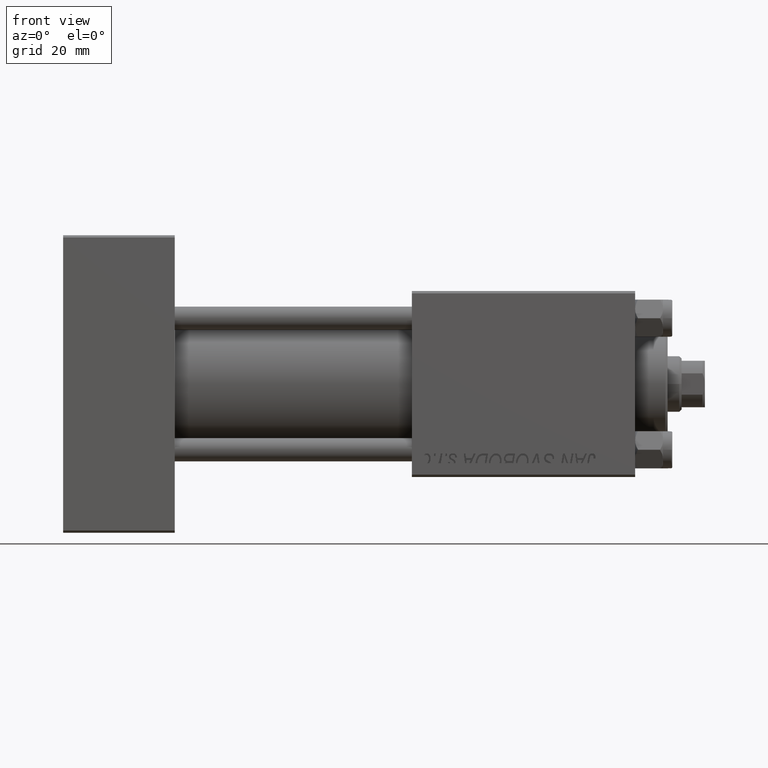
[diagram: clean part render]
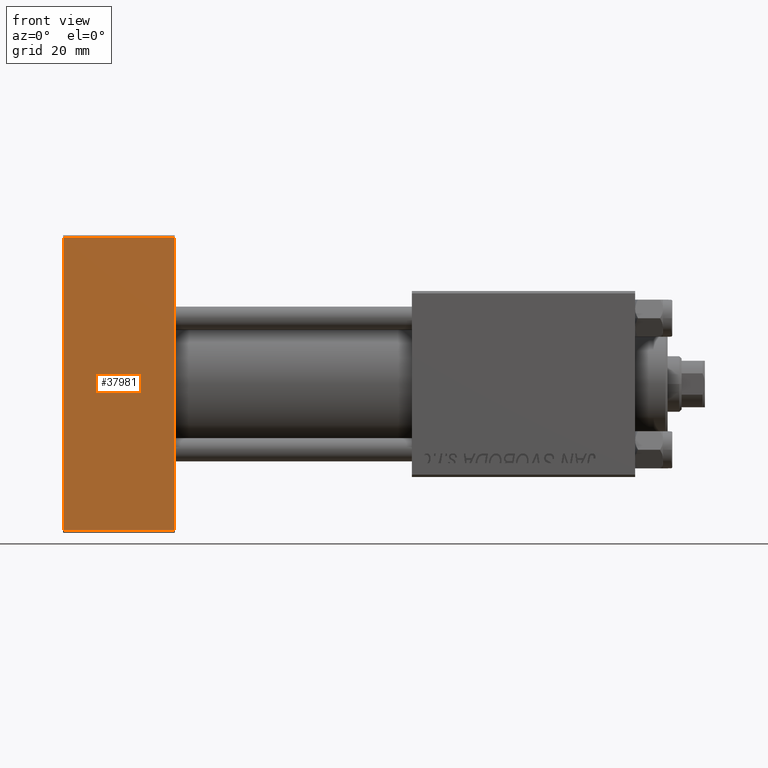
[diagram: same view with one face highlighted and labeled with its STEP entity id]
A machine part, front view. The second image highlights one B-rep face of the part: STEP entity #37981.
In plain terms, the highlighted planar face has unit normal (0, 1, 0).
Its self-contained STEP definition (entity closure, byte-faithful):
#301 = DIRECTION ( 'NONE',  ( 0.000000000000000000, -0.000000000000000000, 1.000000000000000000 ) ) ;
#680 = CARTESIAN_POINT ( 'NONE',  ( 0.000000000000000000, -20.00000000000000355, -31.49999999999997158 ) ) ;
#965 = ORIENTED_EDGE ( 'NONE', *, *, #28176, .T. ) ;
#1591 = CARTESIAN_POINT ( 'NONE',  ( 24.00000000000000000, -20.00000000000000355, -31.49999999999997158 ) ) ;
#2598 = ORIENTED_EDGE ( 'NONE', *, *, #33418, .T. ) ;
#3783 = EDGE_LOOP ( 'NONE', ( #2598, #965, #47887, #24607 ) ) ;
#4586 = FACE_OUTER_BOUND ( 'NONE', #3783, .T. ) ;
#5266 = VECTOR ( 'NONE', #29341, 1000.000000000000000 ) ;
#5304 = LINE ( 'NONE', #28525, #8687 ) ;
#6011 = VERTEX_POINT ( 'NONE', #680 ) ;
#8056 = VECTOR ( 'NONE', #21831, 1000.000000000000000 ) ;
#8372 = PLANE ( 'NONE',  #16758 ) ;
#8687 = VECTOR ( 'NONE', #21460, 1000.000000000000000 ) ;
#9410 = LINE ( 'NONE', #1591, #5266 ) ;
#10711 = CARTESIAN_POINT ( 'NONE',  ( 24.00000000000000000, -20.00000000000000355, 31.50000000000000711 ) ) ;
#12797 = VERTEX_POINT ( 'NONE', #29721 ) ;
#15608 = DIRECTION ( 'NONE',  ( 0.000000000000000000, 0.000000000000000000, -1.000000000000000000 ) ) ;
#16758 = AXIS2_PLACEMENT_3D ( 'NONE', #43205, #32105, #301 ) ;
#19035 = VECTOR ( 'NONE', #15608, 1000.000000000000000 ) ;
#20330 = CARTESIAN_POINT ( 'NONE',  ( 24.00000000000000000, -20.00000000000000355, 32.00000000000000000 ) ) ;
#21460 = DIRECTION ( 'NONE',  ( 0.000000000000000000, 0.000000000000000000, -1.000000000000000000 ) ) ;
#21831 = DIRECTION ( 'NONE',  ( -1.000000000000000000, 0.000000000000000000, 0.000000000000000000 ) ) ;
#24374 = CARTESIAN_POINT ( 'NONE',  ( 0.000000000000000000, -20.00000000000000355, 31.50000000000000711 ) ) ;
#24607 = ORIENTED_EDGE ( 'NONE', *, *, #43626, .T. ) ;
#27631 = VERTEX_POINT ( 'NONE', #24374 ) ;
#28176 = EDGE_CURVE ( 'NONE', #6011, #35608, #9410, .T. ) ;
#28412 = LINE ( 'NONE', #20330, #19035 ) ;
#28525 = CARTESIAN_POINT ( 'NONE',  ( 0.000000000000000000, -20.00000000000000355, 32.00000000000000000 ) ) ;
#29241 = EDGE_CURVE ( 'NONE', #12797, #35608, #28412, .T. ) ;
#29341 = DIRECTION ( 'NONE',  ( 1.000000000000000000, 0.000000000000000000, 0.000000000000000000 ) ) ;
#29721 = CARTESIAN_POINT ( 'NONE',  ( 24.00000000000000000, -20.00000000000000355, 31.50000000000000711 ) ) ;
#32105 = DIRECTION ( 'NONE',  ( -0.000000000000000000, 1.000000000000000000, 0.000000000000000000 ) ) ;
#33418 = EDGE_CURVE ( 'NONE', #27631, #6011, #5304, .T. ) ;
#35608 = VERTEX_POINT ( 'NONE', #37572 ) ;
#37572 = CARTESIAN_POINT ( 'NONE',  ( 24.00000000000000000, -20.00000000000000355, -31.49999999999997158 ) ) ;
#37981 = ADVANCED_FACE ( 'NONE', ( #4586 ), #8372, .F. ) ;
#43205 = CARTESIAN_POINT ( 'NONE',  ( 24.00000000000000000, -20.00000000000000355, 32.00000000000000000 ) ) ;
#43626 = EDGE_CURVE ( 'NONE', #12797, #27631, #45538, .T. ) ;
#45538 = LINE ( 'NONE', #10711, #8056 ) ;
#47887 = ORIENTED_EDGE ( 'NONE', *, *, #29241, .F. ) ;